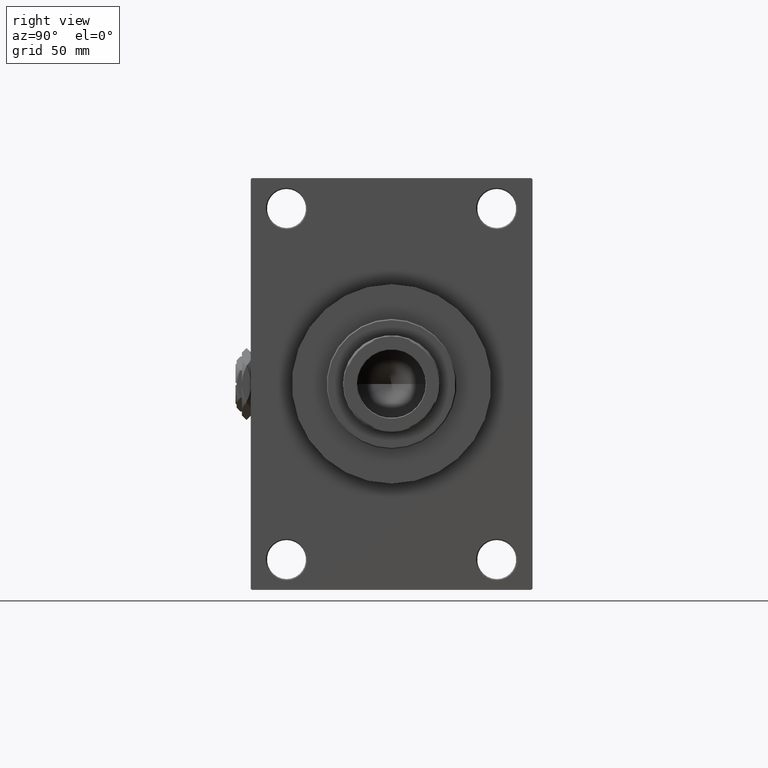
[diagram: clean part render]
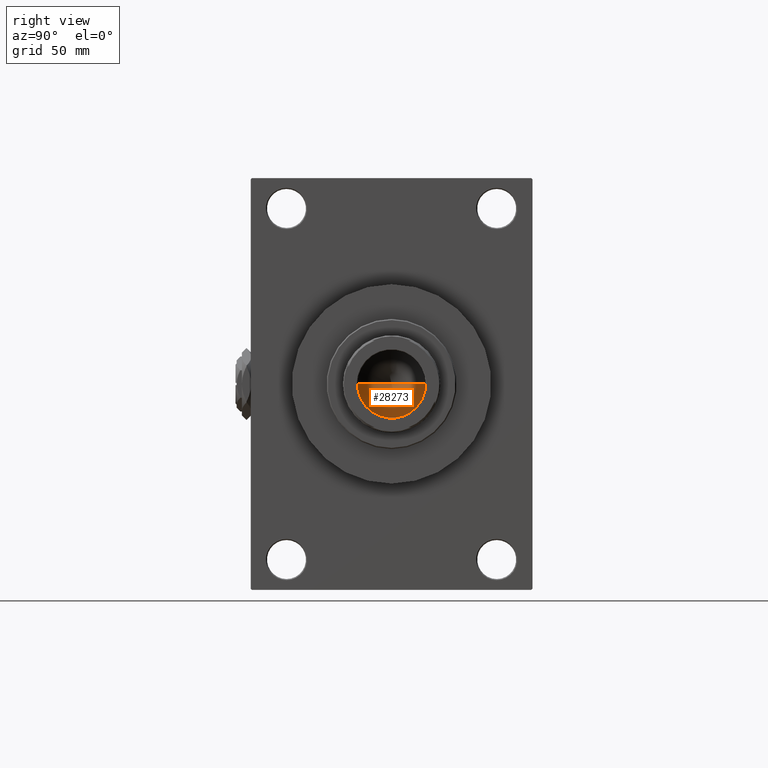
[diagram: same view with one face highlighted and labeled with its STEP entity id]
A machine part, right view. The second image highlights one B-rep face of the part: STEP entity #28273.
In plain terms, the highlighted conical surface has half-angle 59 deg.
Its self-contained STEP definition (entity closure, byte-faithful):
#476 = VERTEX_POINT ( 'NONE', #36470 ) ;
#673 = DIRECTION ( 'NONE',  ( 1.000000000000000000, 0.000000000000000000, 0.000000000000000000 ) ) ;
#3479 = CARTESIAN_POINT ( 'NONE',  ( 0.000000000000000000, 0.000000000000000000, 123.0000000000000142 ) ) ;
#3730 = DIRECTION ( 'NONE',  ( 1.000000000000000000, 0.000000000000000000, 0.000000000000000000 ) ) ;
#5071 = CARTESIAN_POINT ( 'NONE',  ( 15.74999999999998934, 0.000000000000000000, 123.0000000000000142 ) ) ;
#7885 = VERTEX_POINT ( 'NONE', #28235 ) ;
#12689 = EDGE_LOOP ( 'NONE', ( #26909, #37199, #37114 ) ) ;
#17110 = VECTOR ( 'NONE', #37159, 1000.000000000000000 ) ;
#21781 = LINE ( 'NONE', #31963, #17110 ) ;
#24246 = AXIS2_PLACEMENT_3D ( 'NONE', #35923, #27350, #673 ) ;
#26909 = ORIENTED_EDGE ( 'NONE', *, *, #41839, .F. ) ;
#27350 = DIRECTION ( 'NONE',  ( -0.000000000000000000, -0.000000000000000000, 1.000000000000000000 ) ) ;
#28235 = CARTESIAN_POINT ( 'NONE',  ( -15.74999999999998934, 1.928818708657080161E-15, 123.0000000000000142 ) ) ;
#28273 = ADVANCED_FACE ( 'NONE', ( #48793 ), #32030, .F. ) ;
#28471 = LINE ( 'NONE', #5071, #32269 ) ;
#31937 = VERTEX_POINT ( 'NONE', #35975 ) ;
#31963 = CARTESIAN_POINT ( 'NONE',  ( -15.74999999999998934, 1.928818708657080161E-15, 123.0000000000000142 ) ) ;
#32030 = CONICAL_SURFACE ( 'NONE', #39240, 15.74999999999998934, 1.029744258676652979 ) ;
#32269 = VECTOR ( 'NONE', #47345, 1000.000000000000000 ) ;
#35923 = CARTESIAN_POINT ( 'NONE',  ( 0.000000000000000000, 0.000000000000000000, 123.0000000000000142 ) ) ;
#35975 = CARTESIAN_POINT ( 'NONE',  ( -1.584115414415908206E-14, 0.000000000000000000, 113.5364452503159214 ) ) ;
#36470 = CARTESIAN_POINT ( 'NONE',  ( 15.74999999999998934, 0.000000000000000000, 123.0000000000000142 ) ) ;
#37114 = ORIENTED_EDGE ( 'NONE', *, *, #39650, .T. ) ;
#37117 = CIRCLE ( 'NONE', #24246, 15.74999999999998934 ) ;
#37159 = DIRECTION ( 'NONE',  ( -0.8571673007021115565, 1.049727191138617710E-16, 0.5150380749100554878 ) ) ;
#37199 = ORIENTED_EDGE ( 'NONE', *, *, #39067, .T. ) ;
#38232 = DIRECTION ( 'NONE',  ( -0.000000000000000000, -0.000000000000000000, 1.000000000000000000 ) ) ;
#39067 = EDGE_CURVE ( 'NONE', #31937, #476, #28471, .T. ) ;
#39240 = AXIS2_PLACEMENT_3D ( 'NONE', #3479, #38232, #3730 ) ;
#39650 = EDGE_CURVE ( 'NONE', #476, #7885, #37117, .T. ) ;
#41839 = EDGE_CURVE ( 'NONE', #31937, #7885, #21781, .T. ) ;
#47345 = DIRECTION ( 'NONE',  ( 0.8571673007021115565, 0.000000000000000000, 0.5150380749100554878 ) ) ;
#48793 = FACE_OUTER_BOUND ( 'NONE', #12689, .T. ) ;